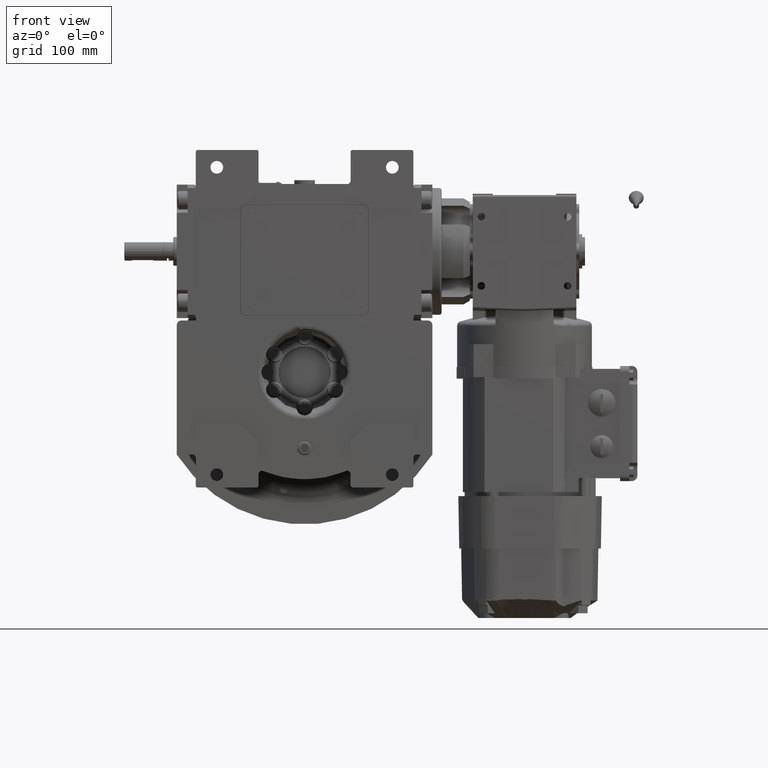
[diagram: clean part render]
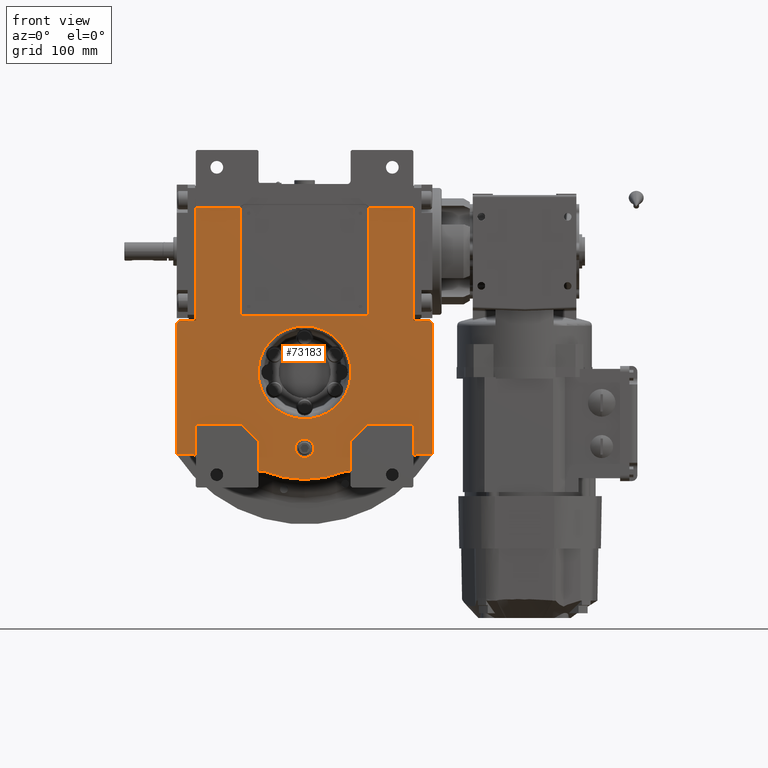
[diagram: same view with one face highlighted and labeled with its STEP entity id]
A machine part, front view. The second image highlights one B-rep face of the part: STEP entity #73183.
In plain terms, the highlighted planar face has unit normal (0, 1, 0).
Its self-contained STEP definition (entity closure, byte-faithful):
#520 = CARTESIAN_POINT ( 'NONE',  ( 1.264666971694413862E-10, -53.50000000000000000, -40.30959420574829721 ) ) ;
#663 = VERTEX_POINT ( 'NONE', #88496 ) ;
#821 = VERTEX_POINT ( 'NONE', #4935 ) ;
#857 = LINE ( 'NONE', #77294, #19953 ) ;
#955 = VECTOR ( 'NONE', #23957, 1000.000000000000000 ) ;
#1355 = DIRECTION ( 'NONE',  ( 0.000000000000000000, 0.000000000000000000, -1.000000000000000000 ) ) ;
#1410 = ORIENTED_EDGE ( 'NONE', *, *, #50418, .T. ) ;
#1433 = ORIENTED_EDGE ( 'NONE', *, *, #51856, .F. ) ;
#1606 = LINE ( 'NONE', #47173, #93940 ) ;
#1640 = VERTEX_POINT ( 'NONE', #68912 ) ;
#2186 = VERTEX_POINT ( 'NONE', #48903 ) ;
#2617 = EDGE_LOOP ( 'NONE', ( #13233, #1410 ) ) ;
#2691 = CARTESIAN_POINT ( 'NONE',  ( -107.0000000000000000, -53.50000000000000000, 45.00000000000000000 ) ) ;
#2939 = DIRECTION ( 'NONE',  ( -1.000000000000000000, 0.000000000000000000, 0.000000000000000000 ) ) ;
#3000 = EDGE_CURVE ( 'NONE', #77273, #2186, #1606, .T. ) ;
#3456 = CARTESIAN_POINT ( 'NONE',  ( 94.50000000000000000, -53.50000000000000000, -45.00000000000000000 ) ) ;
#4236 = VERTEX_POINT ( 'NONE', #18824 ) ;
#4252 = ORIENTED_EDGE ( 'NONE', *, *, #78108, .F. ) ;
#4935 = CARTESIAN_POINT ( 'NONE',  ( -94.50000000000000000, -53.50000000000000000, 143.0000000000000000 ) ) ;
#5477 = ORIENTED_EDGE ( 'NONE', *, *, #35824, .F. ) ;
#5861 = VECTOR ( 'NONE', #44044, 1000.000000000000114 ) ;
#6232 = DIRECTION ( 'NONE',  ( 0.000000000000000000, 0.000000000000000000, -1.000000000000000000 ) ) ;
#6491 = VERTEX_POINT ( 'NONE', #59217 ) ;
#7176 = CIRCLE ( 'NONE', #63718, 92.99999999999995737 ) ;
#7452 = DIRECTION ( 'NONE',  ( -3.469446951953617344E-15, 0.000000000000000000, 1.000000000000000000 ) ) ;
#8101 = CARTESIAN_POINT ( 'NONE',  ( -40.00000000000000000, -53.50000000000000000, -60.00000000000000000 ) ) ;
#8131 = AXIS2_PLACEMENT_3D ( 'NONE', #60971, #8326, #85275 ) ;
#8326 = DIRECTION ( 'NONE',  ( 0.000000000000000000, -1.000000000000000000, 0.000000000000000000 ) ) ;
#8695 = DIRECTION ( 'NONE',  ( 0.000000000000000000, 0.000000000000000000, 1.000000000000000000 ) ) ;
#8843 = VERTEX_POINT ( 'NONE', #55420 ) ;
#9834 = CARTESIAN_POINT ( 'NONE',  ( 94.50000000000000000, -53.50000000000000000, 45.00000000000000000 ) ) ;
#10709 = ORIENTED_EDGE ( 'NONE', *, *, #96795, .T. ) ;
#10954 = VECTOR ( 'NONE', #70550, 1000.000000000000000 ) ;
#11089 = AXIS2_PLACEMENT_3D ( 'NONE', #75731, #60032, #60522 ) ;
#11163 = ORIENTED_EDGE ( 'NONE', *, *, #65617, .F. ) ;
#11903 = EDGE_CURVE ( 'NONE', #69873, #31804, #43281, .T. ) ;
#12007 = CARTESIAN_POINT ( 'NONE',  ( 37.00000000000000000, -53.50000000000000000, -88.58329413608420566 ) ) ;
#12010 = AXIS2_PLACEMENT_3D ( 'NONE', #71233, #78335, #62124 ) ;
#12378 = ORIENTED_EDGE ( 'NONE', *, *, #3000, .F. ) ;
#12530 = CIRCLE ( 'NONE', #78856, 4.000000000000572875 ) ;
#12960 = VECTOR ( 'NONE', #29207, 1000.000000000000000 ) ;
#13233 = ORIENTED_EDGE ( 'NONE', *, *, #67317, .T. ) ;
#13306 = CARTESIAN_POINT ( 'NONE',  ( 40.00000000000000000, -53.50000000000000000, -60.00000000000000000 ) ) ;
#13662 = CARTESIAN_POINT ( 'NONE',  ( 107.0000000000000000, -53.50000000000000000, 45.00000000000000000 ) ) ;
#13741 = AXIS2_PLACEMENT_3D ( 'NONE', #74934, #34470, #44072 ) ;
#14015 = ORIENTED_EDGE ( 'NONE', *, *, #17293, .F. ) ;
#14443 = DIRECTION ( 'NONE',  ( 0.000000000000000000, 0.000000000000000000, 1.000000000000000000 ) ) ;
#14645 = CARTESIAN_POINT ( 'NONE',  ( -94.50000000000000000, -53.50000000000000000, -45.00000000000000000 ) ) ;
#15389 = CARTESIAN_POINT ( 'NONE',  ( 111.0000000000000000, -53.50000000000000000, 41.00000000000000000 ) ) ;
#16137 = DIRECTION ( 'NONE',  ( 0.000000000000000000, 0.000000000000000000, -1.000000000000000000 ) ) ;
#16638 = LINE ( 'NONE', #14645, #40993 ) ;
#16766 = ORIENTED_EDGE ( 'NONE', *, *, #73042, .T. ) ;
#16909 = CARTESIAN_POINT ( 'NONE',  ( 97.50000000000000000, -53.50000000000000000, -71.43528539874399996 ) ) ;
#17185 = CARTESIAN_POINT ( 'NONE',  ( -1.264761546777279996E-10, -53.50000000000000000, 40.30959420574835406 ) ) ;
#17293 = EDGE_CURVE ( 'NONE', #60887, #92020, #76556, .T. ) ;
#18782 = CIRCLE ( 'NONE', #49469, 8.000000000000000000 ) ;
#18792 = LINE ( 'NONE', #96735, #48963 ) ;
#18824 = CARTESIAN_POINT ( 'NONE',  ( 94.50000000000000000, -53.50000000000000000, -45.00000000000000000 ) ) ;
#19073 = DIRECTION ( 'NONE',  ( 0.000000000000000000, 0.000000000000000000, 1.000000000000000000 ) ) ;
#19100 = ORIENTED_EDGE ( 'NONE', *, *, #83858, .F. ) ;
#19227 = ORIENTED_EDGE ( 'NONE', *, *, #56648, .F. ) ;
#19442 = CIRCLE ( 'NONE', #8131, 3.999999999999996447 ) ;
#19821 = DIRECTION ( 'NONE',  ( 1.000000000000000000, 0.000000000000000000, 0.000000000000000000 ) ) ;
#19953 = VECTOR ( 'NONE', #1355, 1000.000000000000000 ) ;
#20028 = DIRECTION ( 'NONE',  ( 1.000000000000000000, 0.000000000000000000, 1.387778780781246883E-14 ) ) ;
#20589 = VERTEX_POINT ( 'NONE', #93789 ) ;
#21600 = ORIENTED_EDGE ( 'NONE', *, *, #39381, .T. ) ;
#22205 = VECTOR ( 'NONE', #69426, 1000.000000000000000 ) ;
#22643 = EDGE_CURVE ( 'NONE', #4236, #92188, #80385, .T. ) ;
#23032 = LINE ( 'NONE', #37209, #80521 ) ;
#23511 = DIRECTION ( 'NONE',  ( 1.000000000000000000, 0.000000000000000000, 0.000000000000000000 ) ) ;
#23889 = EDGE_CURVE ( 'NONE', #20589, #1640, #67824, .T. ) ;
#23957 = DIRECTION ( 'NONE',  ( 6.319570704518680589E-16, 0.000000000000000000, 1.000000000000000000 ) ) ;
#24267 = ORIENTED_EDGE ( 'NONE', *, *, #82295, .F. ) ;
#24485 = CARTESIAN_POINT ( 'NONE',  ( 80.61913312125007280, -53.49999999999999289, -40.30955543265933727 ) ) ;
#25012 = VECTOR ( 'NONE', #6232, 1000.000000000000000 ) ;
#25245 = CARTESIAN_POINT ( 'NONE',  ( 56.00000000000000000, -53.50000000000000000, 53.00000000000000000 ) ) ;
#25287 = CARTESIAN_POINT ( 'NONE',  ( 94.50000000000000000, -53.50000000000000000, 143.0000000000000000 ) ) ;
#25552 = VERTEX_POINT ( 'NONE', #79751 ) ;
#26224 = LINE ( 'NONE', #80395, #92760 ) ;
#26467 = ORIENTED_EDGE ( 'NONE', *, *, #72416, .T. ) ;
#26493 = DIRECTION ( 'NONE',  ( -0.000000000000000000, 1.000000000000000000, 0.000000000000000000 ) ) ;
#26879 = ORIENTED_EDGE ( 'NONE', *, *, #74716, .F. ) ;
#26959 = AXIS2_PLACEMENT_3D ( 'NONE', #29720, #30708, #7452 ) ;
#26994 = CARTESIAN_POINT ( 'NONE',  ( 0.000000000000000000, -53.50000000000000000, 0.000000000000000000 ) ) ;
#29036 = VERTEX_POINT ( 'NONE', #62629 ) ;
#29207 = DIRECTION ( 'NONE',  ( 1.000000000000000000, 0.000000000000000000, 0.000000000000000000 ) ) ;
#29720 = CARTESIAN_POINT ( 'NONE',  ( -107.0000000000000000, -53.50000000000000000, 41.00000000000000000 ) ) ;
#30612 = EDGE_CURVE ( 'NONE', #63428, #37981, #71821, .T. ) ;
#30708 = DIRECTION ( 'NONE',  ( 0.000000000000000000, -1.000000000000000000, 0.000000000000000000 ) ) ;
#30713 = AXIS2_PLACEMENT_3D ( 'NONE', #78603, #94302, #85705 ) ;
#31072 = EDGE_LOOP ( 'NONE', ( #52302, #5477 ) ) ;
#31103 = CARTESIAN_POINT ( 'NONE',  ( 1.264666971694413862E-10, -53.50000000000000000, -40.30959420574829721 ) ) ;
#31804 = VERTEX_POINT ( 'NONE', #25287 ) ;
#32087 = CARTESIAN_POINT ( 'NONE',  ( 111.0000000000000000, -53.50000000000000000, -71.43528539874399996 ) ) ;
#32591 = AXIS2_PLACEMENT_3D ( 'NONE', #12007, #80853, #48446 ) ;
#33042 = VERTEX_POINT ( 'NONE', #60798 ) ;
#33073 = LINE ( 'NONE', #16909, #10954 ) ;
#33094 = CIRCLE ( 'NONE', #13741, 4.000000000000003553 ) ;
#33686 = CIRCLE ( 'NONE', #11089, 8.000000000000000000 ) ;
#33725 = LINE ( 'NONE', #64591, #74552 ) ;
#34187 = CARTESIAN_POINT ( 'NONE',  ( 55.87298334620739837, -53.50000000000000000, 143.0000000000000000 ) ) ;
#34194 = LINE ( 'NONE', #87876, #86383 ) ;
#34470 = DIRECTION ( 'NONE',  ( 0.000000000000000000, -1.000000000000000000, 0.000000000000000000 ) ) ;
#34691 = CARTESIAN_POINT ( 'NONE',  ( -35.84375000000000000, -53.50000000000000000, -85.81506619433150718 ) ) ;
#35049 = ORIENTED_EDGE ( 'NONE', *, *, #68645, .T. ) ;
#35299 = EDGE_CURVE ( 'NONE', #25552, #74223, #33686, .T. ) ;
#35602 = LINE ( 'NONE', #91293, #25012 ) ;
#35610 = ORIENTED_EDGE ( 'NONE', *, *, #30612, .T. ) ;
#35824 = EDGE_CURVE ( 'NONE', #74223, #25552, #18782, .T. ) ;
#36162 = ORIENTED_EDGE ( 'NONE', *, *, #95210, .F. ) ;
#36630 = CARTESIAN_POINT ( 'NONE',  ( -55.00000000000000000, -53.50000000000000000, -45.00000000000000000 ) ) ;
#36848 = CARTESIAN_POINT ( 'NONE',  ( -55.00000000000000000, -53.50000000000000000, -45.00000000000000000 ) ) ;
#37209 = CARTESIAN_POINT ( 'NONE',  ( 94.50000000000000000, -53.50000000000000000, -74.43528539874399996 ) ) ;
#37981 = VERTEX_POINT ( 'NONE', #34691 ) ;
#38551 = DIRECTION ( 'NONE',  ( -0.3854166666666672403, 0.000000000000000000, -0.9227426472508764022 ) ) ;
#39035 = DIRECTION ( 'NONE',  ( 0.000000000000000000, -1.000000000000000000, 0.000000000000000000 ) ) ;
#39381 = EDGE_CURVE ( 'NONE', #1640, #40389, #33073, .T. ) ;
#40037 = CARTESIAN_POINT ( 'NONE',  ( -97.50000000000000000, -53.50000000000000000, -74.43528539874409944 ) ) ;
#40389 = VERTEX_POINT ( 'NONE', #32087 ) ;
#40682 = FACE_BOUND ( 'NONE', #31072, .T. ) ;
#40993 = VECTOR ( 'NONE', #16137, 1000.000000000000000 ) ;
#41074 = LINE ( 'NONE', #89190, #84328 ) ;
#41205 = LINE ( 'NONE', #9834, #79601 ) ;
#41692 = FACE_OUTER_BOUND ( 'NONE', #57738, .T. ) ;
#42395 = VERTEX_POINT ( 'NONE', #13662 ) ;
#42491 = DIRECTION ( 'NONE',  ( 0.000000000000000000, 0.000000000000000000, -1.000000000000000000 ) ) ;
#43048 = CARTESIAN_POINT ( 'NONE',  ( 55.00000000000000000, -53.50000000000000000, -45.00000000000000000 ) ) ;
#43281 = LINE ( 'NONE', #34187, #71362 ) ;
#43727 = ORIENTED_EDGE ( 'NONE', *, *, #99070, .F. ) ;
#44044 = DIRECTION ( 'NONE',  ( -0.7071067811865474617, 0.000000000000000000, -0.7071067811865474617 ) ) ;
#44072 = DIRECTION ( 'NONE',  ( 1.000000000000000000, 0.000000000000000000, 5.204170427930416550E-15 ) ) ;
#45124 = VERTEX_POINT ( 'NONE', #36848 ) ;
#45143 = ORIENTED_EDGE ( 'NONE', *, *, #83086, .F. ) ;
#45153 = CARTESIAN_POINT ( 'NONE',  ( 40.00000000000000000, -53.50000000000000000, -88.58329413608420566 ) ) ;
#45533 = ORIENTED_EDGE ( 'NONE', *, *, #84073, .F. ) ;
#45953 = EDGE_CURVE ( 'NONE', #98500, #92020, #76269, .T. ) ;
#46291 = CARTESIAN_POINT ( 'NONE',  ( 80.61913312099713380, -53.49999999999999289, 40.30952624498025472 ) ) ;
#47173 = CARTESIAN_POINT ( 'NONE',  ( 56.00000000000000000, -53.50000000000000000, 53.00000000000000000 ) ) ;
#48130 = DIRECTION ( 'NONE',  ( 0.000000000000000000, 1.000000000000000000, 0.000000000000000000 ) ) ;
#48446 = DIRECTION ( 'NONE',  ( -0.3854166666666676289, 0.000000000000000000, 0.9227426472508761801 ) ) ;
#48903 = CARTESIAN_POINT ( 'NONE',  ( 56.00000000000000000, -53.50000000000000000, 142.0000000000000000 ) ) ;
#48963 = VECTOR ( 'NONE', #89161, 1000.000000000000000 ) ;
#49208 = VERTEX_POINT ( 'NONE', #79023 ) ;
#49355 = EDGE_CURVE ( 'NONE', #53454, #821, #18792, .T. ) ;
#49469 = AXIS2_PLACEMENT_3D ( 'NONE', #64913, #95817, #57320 ) ;
#50035 = EDGE_CURVE ( 'NONE', #68793, #57524, #857, .T. ) ;
#50088 = LINE ( 'NONE', #80981, #92674 ) ;
#50389 = DIRECTION ( 'NONE',  ( 1.000000000000000000, 0.000000000000000000, 0.000000000000000000 ) ) ;
#50418 = EDGE_CURVE ( 'NONE', #8843, #6491, #95102, .T. ) ;
#50694 = ORIENTED_EDGE ( 'NONE', *, *, #49355, .F. ) ;
#51856 = EDGE_CURVE ( 'NONE', #31804, #49208, #35602, .T. ) ;
#52302 = ORIENTED_EDGE ( 'NONE', *, *, #35299, .F. ) ;
#52970 = LINE ( 'NONE', #89994, #12960 ) ;
#53364 = LINE ( 'NONE', #60950, #955 ) ;
#53400 = VERTEX_POINT ( 'NONE', #62252 ) ;
#53454 = VERTEX_POINT ( 'NONE', #79476 ) ;
#55420 = CARTESIAN_POINT ( 'NONE',  ( -1.264761546777279996E-10, -53.50000000000000000, 40.30959420574835406 ) ) ;
#55709 = CARTESIAN_POINT ( 'NONE',  ( -51.99999999999900524, -53.50000000000000000, 142.0000000000000000 ) ) ;
#56648 = EDGE_CURVE ( 'NONE', #2186, #69873, #12530, .T. ) ;
#56888 = PLANE ( 'NONE',  #73865 ) ;
#57114 = DIRECTION ( 'NONE',  ( -0.7071067811865474617, 0.000000000000000000, 0.7071067811865474617 ) ) ;
#57320 = DIRECTION ( 'NONE',  ( -1.000000000000000000, 0.000000000000000000, 0.000000000000000000 ) ) ;
#57524 = VERTEX_POINT ( 'NONE', #72163 ) ;
#57613 = AXIS2_PLACEMENT_3D ( 'NONE', #40037, #48130, #80537 ) ;
#57732 = VERTEX_POINT ( 'NONE', #15389 ) ;
#57738 = EDGE_LOOP ( 'NONE', ( #45143, #4252, #84907, #36162, #11163, #50694, #62339, #16766, #10709, #35049, #26467, #19100, #24267, #45533, #88277, #35610, #92230, #60519, #14015, #85382, #82093, #26879, #69402, #21600, #73303, #89215, #68176, #1433, #62123, #19227, #12378, #43727 ) ) ;
#57989 = DIRECTION ( 'NONE',  ( 0.000000000000000000, -1.000000000000000000, 0.000000000000000000 ) ) ;
#58511 = CIRCLE ( 'NONE', #71419, 4.000000000000978773 ) ;
#58697 = CARTESIAN_POINT ( 'NONE',  ( 52.00000000000000000, -53.50000000000000000, 49.00000000000000000 ) ) ;
#59217 = CARTESIAN_POINT ( 'NONE',  ( 1.264666971694413862E-10, -53.50000000000000000, -40.30959420574829721 ) ) ;
#59572 = DIRECTION ( 'NONE',  ( 0.000000000000000000, -1.000000000000000000, 0.000000000000000000 ) ) ;
#60032 = DIRECTION ( 'NONE',  ( 0.000000000000000000, -1.000000000000000000, 0.000000000000000000 ) ) ;
#60183 = CARTESIAN_POINT ( 'NONE',  ( -52.00000000000000000, -53.50000000000000000, 49.00000000000000000 ) ) ;
#60519 = ORIENTED_EDGE ( 'NONE', *, *, #45953, .T. ) ;
#60522 = DIRECTION ( 'NONE',  ( 1.000000000000000000, 0.000000000000000000, 0.000000000000000000 ) ) ;
#60798 = CARTESIAN_POINT ( 'NONE',  ( -55.87298334620739837, -53.50000000000000000, 143.0000000000000000 ) ) ;
#60887 = VERTEX_POINT ( 'NONE', #61265 ) ;
#60950 = CARTESIAN_POINT ( 'NONE',  ( 111.0000000000000000, -53.50000000000000000, -71.43528539874399996 ) ) ;
#60971 = CARTESIAN_POINT ( 'NONE',  ( -52.00000000000000000, -53.50000000000000000, 53.00000000000000000 ) ) ;
#61265 = CARTESIAN_POINT ( 'NONE',  ( 40.00000000000000000, -53.50000000000000000, -60.00000000000000000 ) ) ;
#61754 = CARTESIAN_POINT ( 'NONE',  ( -80.61913312099703433, -53.49999999999999289, -40.30952624498007708 ) ) ;
#62123 = ORIENTED_EDGE ( 'NONE', *, *, #11903, .F. ) ;
#62124 = DIRECTION ( 'NONE',  ( -1.000000000000000000, 0.000000000000000000, 4.625929269271481378E-15 ) ) ;
#62252 = CARTESIAN_POINT ( 'NONE',  ( -111.0000000000000000, -53.50000000000000000, -71.43528539874409944 ) ) ;
#62275 = AXIS2_PLACEMENT_3D ( 'NONE', #67154, #59572, #90489 ) ;
#62339 = ORIENTED_EDGE ( 'NONE', *, *, #91488, .F. ) ;
#62629 = CARTESIAN_POINT ( 'NONE',  ( -94.50000000000000000, -53.50000000000000000, -74.43528539874409944 ) ) ;
#63428 = VERTEX_POINT ( 'NONE', #86607 ) ;
#63480 = VERTEX_POINT ( 'NONE', #70386 ) ;
#63718 = AXIS2_PLACEMENT_3D ( 'NONE', #76544, #68918, #38551 ) ;
#64591 = CARTESIAN_POINT ( 'NONE',  ( -40.00000000000000000, -53.50000000000000000, -88.58329413608420566 ) ) ;
#64913 = CARTESIAN_POINT ( 'NONE',  ( -8.881784197001250351E-16, -53.50000000000000000, -66.00000000000000000 ) ) ;
#65468 = FACE_BOUND ( 'NONE', #2617, .T. ) ;
#65617 = EDGE_CURVE ( 'NONE', #821, #33042, #41074, .T. ) ;
#65874 = CARTESIAN_POINT ( 'NONE',  ( 35.84375000000000000, -53.50000000000000000, -85.81506619433150718 ) ) ;
#66355 = EDGE_CURVE ( 'NONE', #49208, #42395, #41205, .T. ) ;
#67154 = CARTESIAN_POINT ( 'NONE',  ( 52.00000000000000000, -53.50000000000000000, 53.00000000000000000 ) ) ;
#67317 = EDGE_CURVE ( 'NONE', #6491, #8843, #77069, .T. ) ;
#67692 = VECTOR ( 'NONE', #2939, 1000.000000000000000 ) ;
#67824 = CIRCLE ( 'NONE', #30713, 3.000000000000002665 ) ;
#68176 = ORIENTED_EDGE ( 'NONE', *, *, #66355, .F. ) ;
#68645 = EDGE_CURVE ( 'NONE', #53400, #95511, #34194, .T. ) ;
#68793 = VERTEX_POINT ( 'NONE', #76159 ) ;
#68912 = CARTESIAN_POINT ( 'NONE',  ( 97.50000000000000000, -53.50000000000000000, -71.43528539874399996 ) ) ;
#68918 = DIRECTION ( 'NONE',  ( 0.000000000000000000, -1.000000000000000000, 0.000000000000000000 ) ) ;
#69402 = ORIENTED_EDGE ( 'NONE', *, *, #23889, .T. ) ;
#69426 = DIRECTION ( 'NONE',  ( 0.000000000000000000, 0.000000000000000000, -1.000000000000000000 ) ) ;
#69873 = VERTEX_POINT ( 'NONE', #84409 ) ;
#70386 = CARTESIAN_POINT ( 'NONE',  ( -52.00000000000000000, -53.50000000000000000, 49.00000000000000000 ) ) ;
#70550 = DIRECTION ( 'NONE',  ( 1.000000000000000000, 0.000000000000000000, 0.000000000000000000 ) ) ;
#70584 = CIRCLE ( 'NONE', #26959, 3.999999999999996447 ) ;
#71233 = CARTESIAN_POINT ( 'NONE',  ( -37.00000000000000000, -53.50000000000000000, -88.58329413608420566 ) ) ;
#71362 = VECTOR ( 'NONE', #50389, 1000.000000000000000 ) ;
#71419 = AXIS2_PLACEMENT_3D ( 'NONE', #55709, #39035, #94217 ) ;
#71821 = CIRCLE ( 'NONE', #12010, 3.000000000000002665 ) ;
#72163 = CARTESIAN_POINT ( 'NONE',  ( -56.00000000000000000, -53.50000000000000000, 53.00000000000000000 ) ) ;
#72416 = EDGE_CURVE ( 'NONE', #95511, #29036, #85068, .T. ) ;
#72567 = EDGE_CURVE ( 'NONE', #92188, #60887, #73923, .T. ) ;
#72676 = DIRECTION ( 'NONE',  ( 1.000000000000000000, 0.000000000000000000, 0.000000000000000000 ) ) ;
#73042 = EDGE_CURVE ( 'NONE', #79559, #663, #70584, .T. ) ;
#73183 = ADVANCED_FACE ( 'NONE', ( #65468, #40682, #41692 ), #56888, .F. ) ;
#73303 = ORIENTED_EDGE ( 'NONE', *, *, #99440, .T. ) ;
#73865 = AXIS2_PLACEMENT_3D ( 'NONE', #26994, #26493, #87268 ) ;
#73923 = LINE ( 'NONE', #43048, #5861 ) ;
#74223 = VERTEX_POINT ( 'NONE', #83914 ) ;
#74311 = CARTESIAN_POINT ( 'NONE',  ( -94.50000000000000000, -53.50000000000000000, -45.00000000000000000 ) ) ;
#74552 = VECTOR ( 'NONE', #19073, 1000.000000000000000 ) ;
#74716 = EDGE_CURVE ( 'NONE', #20589, #4236, #23032, .T. ) ;
#74934 = CARTESIAN_POINT ( 'NONE',  ( 107.0000000000000000, -53.50000000000000000, 41.00000000000000000 ) ) ;
#75731 = CARTESIAN_POINT ( 'NONE',  ( 8.881784197001250351E-16, -53.50000000000000000, -66.00000000000000000 ) ) ;
#76159 = CARTESIAN_POINT ( 'NONE',  ( -56.00000000000000000, -53.50000000000000000, 142.0000000000000000 ) ) ;
#76269 = CIRCLE ( 'NONE', #32591, 3.000000000000003997 ) ;
#76544 = CARTESIAN_POINT ( 'NONE',  ( 1.421085471520200056E-14, -53.50000000000000000, -4.263256414560599853E-14 ) ) ;
#76556 = LINE ( 'NONE', #13306, #22205 ) ;
#77069 =( BOUNDED_CURVE ( )  B_SPLINE_CURVE ( 3, ( #520, #61754, #92661, #17185 ),
 .UNSPECIFIED., .F., .F. ) 
 B_SPLINE_CURVE_WITH_KNOTS ( ( 4, 4 ),
 ( 1.432582689913126872, 4.574174019572492256 ),
 .UNSPECIFIED. ) 
 CURVE ( )  GEOMETRIC_REPRESENTATION_ITEM ( )  RATIONAL_B_SPLINE_CURVE ( ( 1.000000000000000000, 0.3333337746434759108, 0.3333337746434759108, 1.000000000000000000 ) ) 
 REPRESENTATION_ITEM ( '' )  );
#77273 = VERTEX_POINT ( 'NONE', #25245 ) ;
#77294 = CARTESIAN_POINT ( 'NONE',  ( -56.00000000000000000, -53.50000000000000000, 142.0000000000000000 ) ) ;
#78108 = EDGE_CURVE ( 'NONE', #57524, #63480, #19442, .T. ) ;
#78335 = DIRECTION ( 'NONE',  ( 0.000000000000000000, 1.000000000000000000, 0.000000000000000000 ) ) ;
#78603 = CARTESIAN_POINT ( 'NONE',  ( 97.50000000000000000, -53.50000000000000000, -74.43528539874399996 ) ) ;
#78856 = AXIS2_PLACEMENT_3D ( 'NONE', #80769, #57989, #20028 ) ;
#79023 = CARTESIAN_POINT ( 'NONE',  ( 94.50000000000000000, -53.50000000000000000, 45.00000000000000000 ) ) ;
#79244 = EDGE_CURVE ( 'NONE', #63428, #95331, #33725, .T. ) ;
#79348 = DIRECTION ( 'NONE',  ( -1.000000000000000000, 0.000000000000000000, 0.000000000000000000 ) ) ;
#79476 = CARTESIAN_POINT ( 'NONE',  ( -94.50000000000000000, -53.50000000000000000, 45.00000000000000000 ) ) ;
#79559 = VERTEX_POINT ( 'NONE', #2691 ) ;
#79601 = VECTOR ( 'NONE', #23511, 1000.000000000000000 ) ;
#79603 = VECTOR ( 'NONE', #79348, 1000.000000000000000 ) ;
#79674 = VECTOR ( 'NONE', #84497, 1000.000000000000000 ) ;
#79751 = CARTESIAN_POINT ( 'NONE',  ( 8.000000000000000000, -53.50000000000000000, -66.00000000000000000 ) ) ;
#80385 = LINE ( 'NONE', #3456, #67692 ) ;
#80395 = CARTESIAN_POINT ( 'NONE',  ( -40.00000000000000000, -53.50000000000000000, -60.00000000000000000 ) ) ;
#80521 = VECTOR ( 'NONE', #14443, 1000.000000000000000 ) ;
#80537 = DIRECTION ( 'NONE',  ( 0.000000000000000000, 0.000000000000000000, 1.000000000000000000 ) ) ;
#80769 = CARTESIAN_POINT ( 'NONE',  ( 51.99999999999940314, -53.50000000000000000, 142.0000000000000000 ) ) ;
#80853 = DIRECTION ( 'NONE',  ( 0.000000000000000000, 1.000000000000000000, 0.000000000000000000 ) ) ;
#80981 = CARTESIAN_POINT ( 'NONE',  ( -111.0000000000000000, -53.50000000000000000, 41.00000000000000000 ) ) ;
#81685 = CIRCLE ( 'NONE', #62275, 3.999999999999996447 ) ;
#81936 = CARTESIAN_POINT ( 'NONE',  ( -97.50000000000000000, -53.50000000000000000, -71.43528539874409944 ) ) ;
#82093 = ORIENTED_EDGE ( 'NONE', *, *, #22643, .F. ) ;
#82295 = EDGE_CURVE ( 'NONE', #45124, #93939, #95550, .T. ) ;
#83086 = EDGE_CURVE ( 'NONE', #63480, #97654, #99661, .T. ) ;
#83858 = EDGE_CURVE ( 'NONE', #93939, #29036, #16638, .T. ) ;
#83914 = CARTESIAN_POINT ( 'NONE',  ( -8.000000000000000000, -53.50000000000000000, -66.00000000000000000 ) ) ;
#84073 = EDGE_CURVE ( 'NONE', #95331, #45124, #26224, .T. ) ;
#84328 = VECTOR ( 'NONE', #19821, 1000.000000000000000 ) ;
#84409 = CARTESIAN_POINT ( 'NONE',  ( 55.87298334620739837, -53.50000000000000000, 143.0000000000000000 ) ) ;
#84497 = DIRECTION ( 'NONE',  ( 1.000000000000000000, 0.000000000000000000, 0.000000000000000000 ) ) ;
#84784 = CARTESIAN_POINT ( 'NONE',  ( -1.264761546777279996E-10, -53.50000000000000000, 40.30959420574835406 ) ) ;
#84907 = ORIENTED_EDGE ( 'NONE', *, *, #50035, .F. ) ;
#85068 = CIRCLE ( 'NONE', #57613, 3.000000000000002665 ) ;
#85268 = EDGE_CURVE ( 'NONE', #37981, #98500, #7176, .T. ) ;
#85275 = DIRECTION ( 'NONE',  ( -1.000000000000000000, 0.000000000000000000, 1.734723475976808672E-15 ) ) ;
#85382 = ORIENTED_EDGE ( 'NONE', *, *, #72567, .F. ) ;
#85705 = DIRECTION ( 'NONE',  ( -1.000000000000000000, 0.000000000000000000, 0.000000000000000000 ) ) ;
#86144 = CARTESIAN_POINT ( 'NONE',  ( 55.00000000000000000, -53.50000000000000000, -45.00000000000000000 ) ) ;
#86383 = VECTOR ( 'NONE', #72676, 1000.000000000000000 ) ;
#86607 = CARTESIAN_POINT ( 'NONE',  ( -40.00000000000000000, -53.50000000000000000, -88.58329413608420566 ) ) ;
#86786 = EDGE_CURVE ( 'NONE', #57732, #42395, #33094, .T. ) ;
#87268 = DIRECTION ( 'NONE',  ( 1.000000000000000000, 0.000000000000000000, 0.000000000000000000 ) ) ;
#87876 = CARTESIAN_POINT ( 'NONE',  ( -111.0000000000000000, -53.50000000000000000, -71.43528539874409944 ) ) ;
#88277 = ORIENTED_EDGE ( 'NONE', *, *, #79244, .F. ) ;
#88496 = CARTESIAN_POINT ( 'NONE',  ( -111.0000000000000000, -53.50000000000000000, 41.00000000000000000 ) ) ;
#89161 = DIRECTION ( 'NONE',  ( 0.000000000000000000, 0.000000000000000000, 1.000000000000000000 ) ) ;
#89190 = CARTESIAN_POINT ( 'NONE',  ( -94.50000000000000000, -53.50000000000000000, 143.0000000000000000 ) ) ;
#89215 = ORIENTED_EDGE ( 'NONE', *, *, #86786, .T. ) ;
#89994 = CARTESIAN_POINT ( 'NONE',  ( -107.0000000000000000, -53.50000000000000000, 45.00000000000000000 ) ) ;
#90489 = DIRECTION ( 'NONE',  ( 0.000000000000000000, 0.000000000000000000, -1.000000000000000000 ) ) ;
#91293 = CARTESIAN_POINT ( 'NONE',  ( 94.50000000000000000, -53.50000000000000000, 143.0000000000000000 ) ) ;
#91488 = EDGE_CURVE ( 'NONE', #79559, #53454, #52970, .T. ) ;
#92020 = VERTEX_POINT ( 'NONE', #45153 ) ;
#92188 = VERTEX_POINT ( 'NONE', #86144 ) ;
#92230 = ORIENTED_EDGE ( 'NONE', *, *, #85268, .T. ) ;
#92661 = CARTESIAN_POINT ( 'NONE',  ( -80.61913312124997333, -53.49999999999999289, 40.30955543265923069 ) ) ;
#92674 = VECTOR ( 'NONE', #42491, 1000.000000000000000 ) ;
#92760 = VECTOR ( 'NONE', #57114, 1000.000000000000114 ) ;
#93789 = CARTESIAN_POINT ( 'NONE',  ( 94.50000000000000000, -53.50000000000000000, -74.43528539874399996 ) ) ;
#93939 = VERTEX_POINT ( 'NONE', #74311 ) ;
#93940 = VECTOR ( 'NONE', #8695, 1000.000000000000000 ) ;
#94217 = DIRECTION ( 'NONE',  ( -0.9682458365518610277, 0.000000000000000000, 0.2499999999999737432 ) ) ;
#94302 = DIRECTION ( 'NONE',  ( 0.000000000000000000, 1.000000000000000000, 0.000000000000000000 ) ) ;
#95102 =( BOUNDED_CURVE ( )  B_SPLINE_CURVE ( 3, ( #84784, #46291, #24485, #31103 ),
 .UNSPECIFIED., .F., .F. ) 
 B_SPLINE_CURVE_WITH_KNOTS ( ( 4, 4 ),
 ( 4.574175343352308687, 7.715766673011676957 ),
 .UNSPECIFIED. ) 
 CURVE ( )  GEOMETRIC_REPRESENTATION_ITEM ( )  RATIONAL_B_SPLINE_CURVE ( ( 1.000000000000000000, 0.3333337746434750226, 0.3333337746434750226, 1.000000000000000000 ) ) 
 REPRESENTATION_ITEM ( '' )  );
#95210 = EDGE_CURVE ( 'NONE', #33042, #68793, #58511, .T. ) ;
#95331 = VERTEX_POINT ( 'NONE', #8101 ) ;
#95511 = VERTEX_POINT ( 'NONE', #81936 ) ;
#95550 = LINE ( 'NONE', #36630, #79603 ) ;
#95817 = DIRECTION ( 'NONE',  ( 0.000000000000000000, -1.000000000000000000, 0.000000000000000000 ) ) ;
#96735 = CARTESIAN_POINT ( 'NONE',  ( -94.50000000000000000, -53.50000000000000000, 45.00000000000000000 ) ) ;
#96795 = EDGE_CURVE ( 'NONE', #663, #53400, #50088, .T. ) ;
#97654 = VERTEX_POINT ( 'NONE', #58697 ) ;
#98500 = VERTEX_POINT ( 'NONE', #65874 ) ;
#99070 = EDGE_CURVE ( 'NONE', #97654, #77273, #81685, .T. ) ;
#99440 = EDGE_CURVE ( 'NONE', #40389, #57732, #53364, .T. ) ;
#99661 = LINE ( 'NONE', #60183, #79674 ) ;